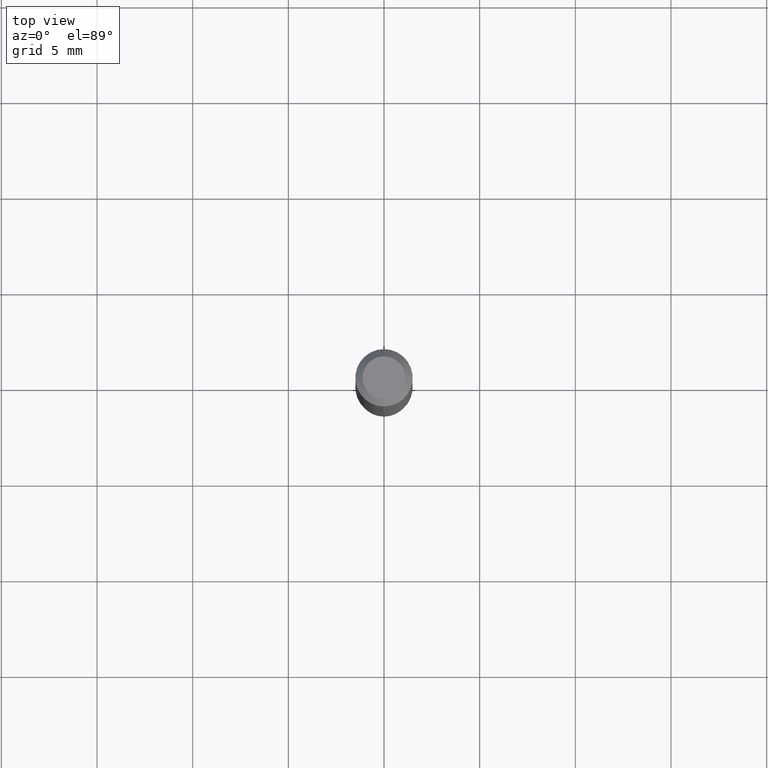
[diagram: clean part render]
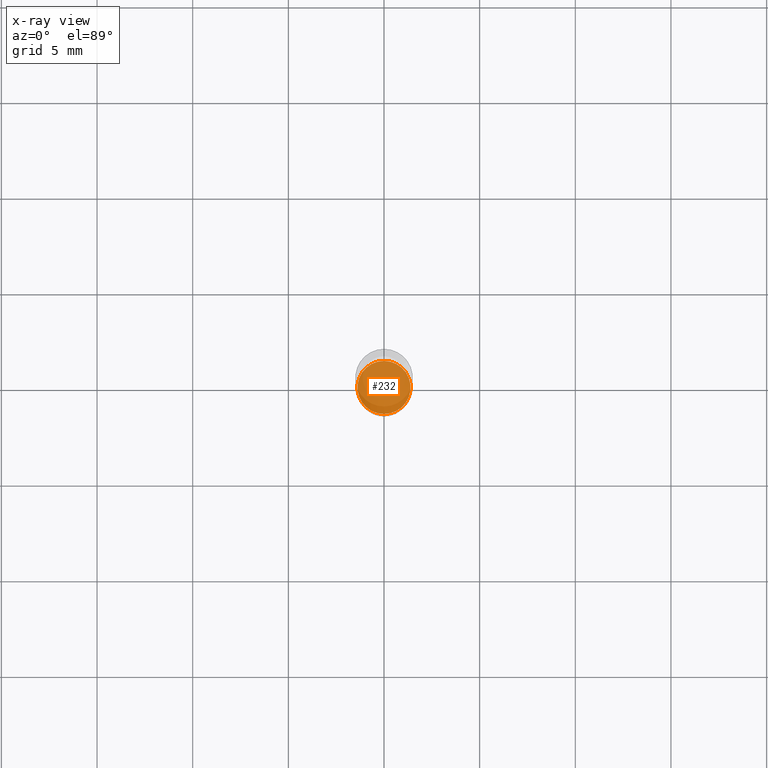
[diagram: x-ray — body ghosted, one internal face saturated and labeled with its STEP entity id]
A machine part, top view, then the same camera in x-ray: the body is ghosted and one INTERNAL B-rep face — a face not visible from any outside direction — is saturated and labeled: STEP entity #232.
In plain terms, the highlighted planar face has unit normal (-0, 0, 1).
Its self-contained STEP definition (entity closure, byte-faithful):
#2 = AXIS2_PLACEMENT_3D ( 'NONE', #252, #88, #367 ) ;
#13 = EDGE_CURVE ( 'NONE', #127, #473, #128, .T. ) ;
#36 = DIRECTION ( 'NONE',  ( -6.982962677686265922E-15, -1.000000000000000000, 2.501692301890350751E-15 ) ) ;
#88 = DIRECTION ( 'NONE',  ( -2.445432111437345549E-29, 3.491533887810517197E-15, 1.000000000000000000 ) ) ;
#119 = DIRECTION ( 'NONE',  ( -2.445432111437345549E-29, 3.491533887810517591E-15, 1.000000000000000000 ) ) ;
#127 = VERTEX_POINT ( 'NONE', #389 ) ;
#128 = CIRCLE ( 'NONE', #245, 0.05460000000000000270 ) ;
#171 = FACE_OUTER_BOUND ( 'NONE', #187, .T. ) ;
#187 = EDGE_LOOP ( 'NONE', ( #243, #227 ) ) ;
#189 = CARTESIAN_POINT ( 'NONE',  ( 2.849906582669082703E-29, -4.069033592854377143E-15, -1.165399999999999991 ) ) ;
#220 = AXIS2_PLACEMENT_3D ( 'NONE', #333, #119, #259 ) ;
#227 = ORIENTED_EDGE ( 'NONE', *, *, #13, .F. ) ;
#232 = ADVANCED_FACE ( 'NONE', ( #171 ), #328, .F. ) ;
#238 = EDGE_CURVE ( 'NONE', #473, #127, #254, .T. ) ;
#243 = ORIENTED_EDGE ( 'NONE', *, *, #238, .F. ) ;
#245 = AXIS2_PLACEMENT_3D ( 'NONE', #189, #435, #36 ) ;
#252 = CARTESIAN_POINT ( 'NONE',  ( 2.849906582669082703E-29, -4.069033592854377143E-15, -1.165399999999999991 ) ) ;
#254 = CIRCLE ( 'NONE', #220, 0.05460000000000000270 ) ;
#259 = DIRECTION ( 'NONE',  ( -6.982962677686265922E-15, -1.000000000000000000, 2.501692301890350751E-15 ) ) ;
#328 = PLANE ( 'NONE',  #2 ) ;
#333 = CARTESIAN_POINT ( 'NONE',  ( 2.849906582669082703E-29, -4.069033592854377143E-15, -1.165399999999999991 ) ) ;
#339 = CARTESIAN_POINT ( 'NONE',  ( -3.812697622016416376E-16, -0.05460000000000407583, -1.165399999999999769 ) ) ;
#367 = DIRECTION ( 'NONE',  ( -6.982962677686265922E-15, -1.000000000000000000, 3.491533887810517197E-15 ) ) ;
#389 = CARTESIAN_POINT ( 'NONE',  ( 3.897326905644436182E-16, 0.05459999999999592957, -1.165399999999999991 ) ) ;
#435 = DIRECTION ( 'NONE',  ( -2.445432111437345549E-29, 3.491533887810517591E-15, 1.000000000000000000 ) ) ;
#473 = VERTEX_POINT ( 'NONE', #339 ) ;